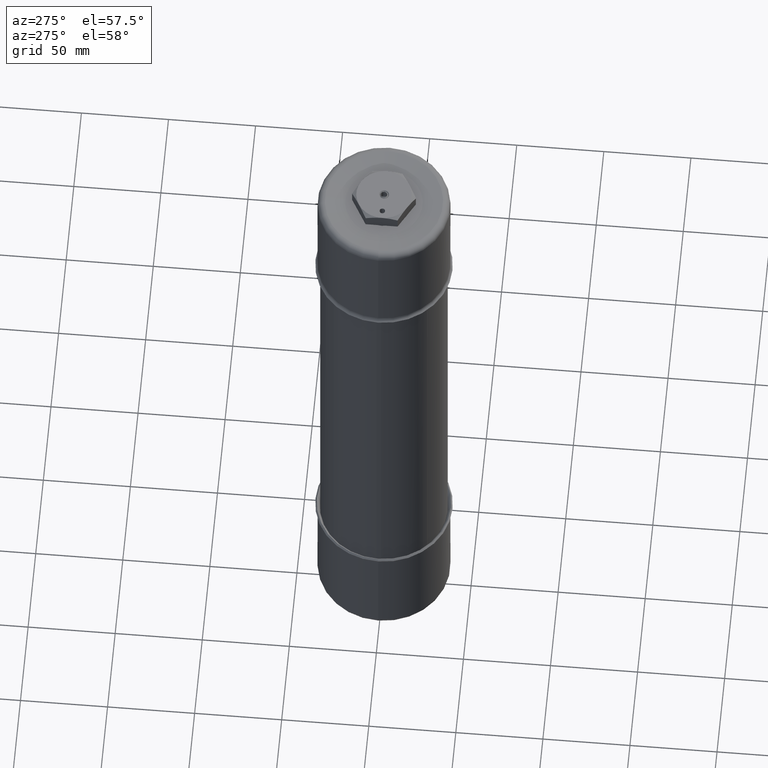
[diagram: clean part render]
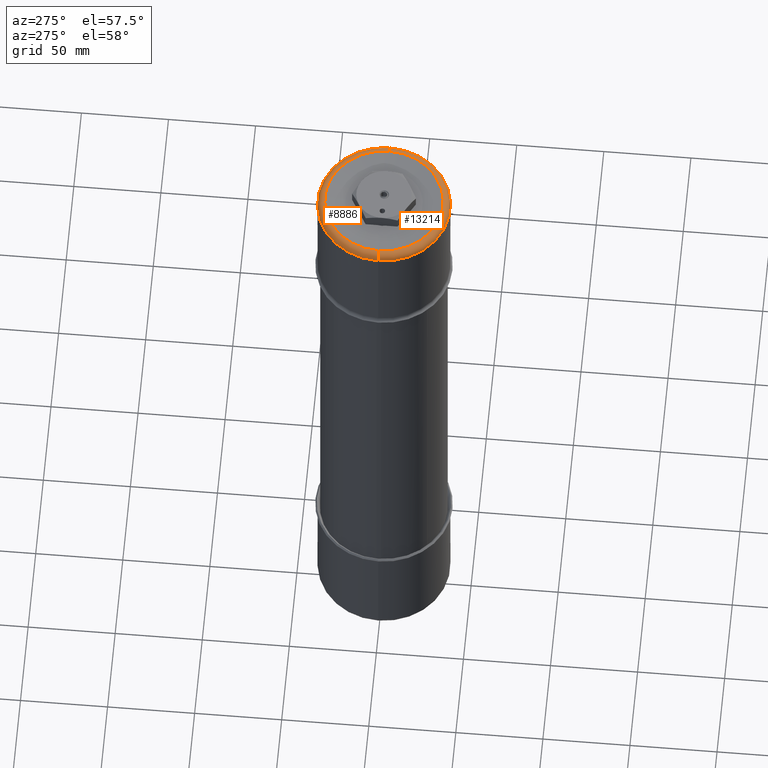
[diagram: same view with one multi-face feature highlighted, each face labeled with its STEP entity id]
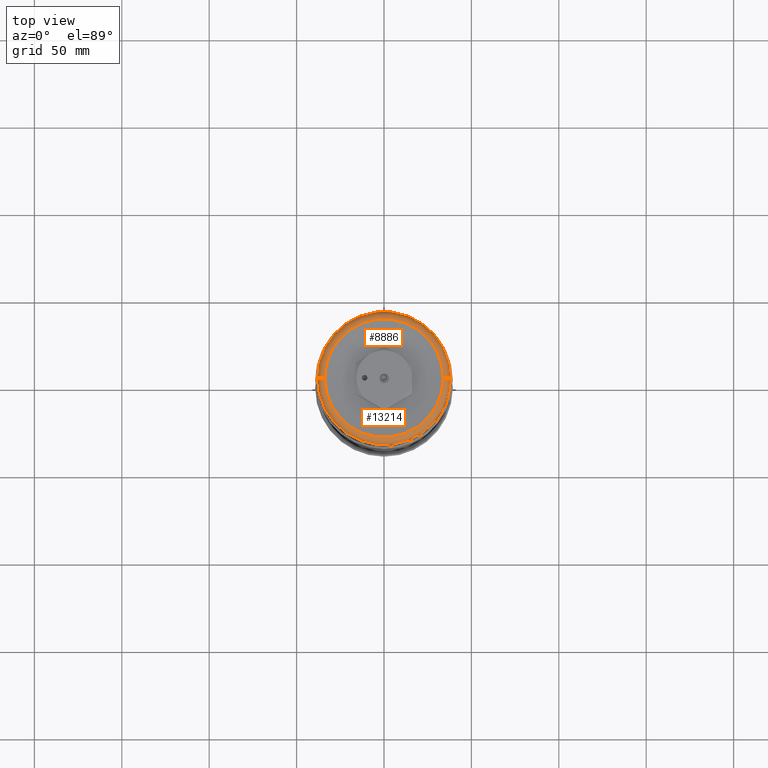
[diagram: same view with one multi-face feature highlighted, each face labeled with its STEP entity id]
A machine part, auxiliary view. The highlighted faces form ONE feature: a constant-radius fillet chain: 2 tangent blend faces with common blend radius 4.1656 mm. The faces share edges in the B-rep.
A second angle (top view) of the same feature is appended — it is thin or edge-on in the first view.
Their STEP definitions:
[1] entity #13214 (Torus):
#265 = TOROIDAL_SURFACE ( 'NONE', #10430, 1.334999999999999500, 0.1640000000000000100 ) ;
#697 = CIRCLE ( 'NONE', #10086, 0.1639999999999999500 ) ;
#939 = DIRECTION ( 'NONE',  ( -6.695352868346986400E-017, 1.000000000000000000, -1.617672680927955200E-030 ) ) ;
#1162 = AXIS2_PLACEMENT_3D ( 'NONE', #2802, #12917, #4239 ) ;
#1611 = VERTEX_POINT ( 'NONE', #10228 ) ;
#2294 = CARTESIAN_POINT ( 'NONE',  ( 2.663827230358403700E-014, -1.473482836812794400E-030, -0.06049999999999982500 ) ) ;
#2346 = AXIS2_PLACEMENT_3D ( 'NONE', #13320, #4664, #14798 ) ;
#2802 = CARTESIAN_POINT ( 'NONE',  ( -1.334999999999973500, 7.410738689373792400E-017, -0.06050000000000448100 ) ) ;
#2903 = ORIENTED_EDGE ( 'NONE', *, *, #10505, .F. ) ;
#3362 = VERTEX_POINT ( 'NONE', #10164 ) ;
#4239 = DIRECTION ( 'NONE',  ( 1.000000000000000000, -5.551115123126545700E-017, 0.0000000000000000000 ) ) ;
#4640 = VERTEX_POINT ( 'NONE', #11846 ) ;
#4664 = DIRECTION ( 'NONE',  ( 3.491483361109390700E-015, -1.383905549562059800E-030, -1.000000000000000000 ) ) ;
#5248 = DIRECTION ( 'NONE',  ( -1.000000000000000000, 5.551115123126544400E-017, -3.491483361109390700E-015 ) ) ;
#5834 = EDGE_LOOP ( 'NONE', ( #5980, #14625, #8791, #2903 ) ) ;
#5980 = ORIENTED_EDGE ( 'NONE', *, *, #6364, .F. ) ;
#6364 = EDGE_CURVE ( 'NONE', #4640, #16705, #697, .T. ) ;
#7321 = EDGE_CURVE ( 'NONE', #4640, #1611, #16258, .T. ) ;
#8576 = DIRECTION ( 'NONE',  ( 3.491483361109390700E-015, -1.383905549562059800E-030, -1.000000000000000000 ) ) ;
#8791 = ORIENTED_EDGE ( 'NONE', *, *, #10511, .T. ) ;
#9609 = CARTESIAN_POINT ( 'NONE',  ( 1.335000000000027100, 8.938296079243082800E-017, -0.06049999999999516200 ) ) ;
#10086 = AXIS2_PLACEMENT_3D ( 'NONE', #9609, #939, #11053 ) ;
#10164 = CARTESIAN_POINT ( 'NONE',  ( -1.498999999999973900, 8.321121569566546100E-017, -0.06050000000000564000 ) ) ;
#10228 = CARTESIAN_POINT ( 'NONE',  ( -1.334999999999974400, 7.410738689373815800E-017, 0.1034999999999955100 ) ) ;
#10430 = AXIS2_PLACEMENT_3D ( 'NONE', #2294, #13909, #5248 ) ;
#10505 = EDGE_CURVE ( 'NONE', #16705, #3362, #15849, .T. ) ;
#10511 = EDGE_CURVE ( 'NONE', #1611, #3362, #11984, .T. ) ;
#10823 = CARTESIAN_POINT ( 'NONE',  ( 1.499000000000027400, 1.003633394965199000E-016, -0.06049999999999516900 ) ) ;
#11053 = DIRECTION ( 'NONE',  ( -1.000000000000000000, -6.695352868346988900E-017, 0.0000000000000000000 ) ) ;
#11846 = CARTESIAN_POINT ( 'NONE',  ( 1.335000000000025500, 9.487315014447541400E-017, 0.1035000000000048400 ) ) ;
#11984 = CIRCLE ( 'NONE', #1162, 0.1639999999999999500 ) ;
#12917 = DIRECTION ( 'NONE',  ( -5.551115123126544400E-017, -1.000000000000000000, 1.190089288682069400E-030 ) ) ;
#13214 = ADVANCED_FACE ( 'NONE', ( #17011 ), #265, .T. ) ;
#13320 = CARTESIAN_POINT ( 'NONE',  ( 2.606897546951741200E-014, -1.246705870817581700E-030, 0.1035000000000001800 ) ) ;
#13909 = DIRECTION ( 'NONE',  ( 3.491483361109390700E-015, -1.383905549562059800E-030, -1.000000000000000000 ) ) ;
#14625 = ORIENTED_EDGE ( 'NONE', *, *, #7321, .T. ) ;
#14798 = DIRECTION ( 'NONE',  ( -1.000000000000000000, 5.551115123126544400E-017, -3.491547295273144500E-015 ) ) ;
#15849 = CIRCLE ( 'NONE', #18015, 1.499000000000000600 ) ;
#16258 = CIRCLE ( 'NONE', #2346, 1.335000000000000400 ) ;
#16705 = VERTEX_POINT ( 'NONE', #10823 ) ;
#17011 = FACE_OUTER_BOUND ( 'NONE', #5834, .T. ) ;
#17243 = CARTESIAN_POINT ( 'NONE',  ( 2.663827230358403400E-014, -1.473482836812795000E-030, -0.06050000000000040100 ) ) ;
#18015 = AXIS2_PLACEMENT_3D ( 'NONE', #17243, #8576, #18711 ) ;
#18711 = DIRECTION ( 'NONE',  ( -1.000000000000000000, 5.551115123126544400E-017, -3.491124958547766700E-015 ) ) ;
[2] entity #8886 (Torus):
#697 = CIRCLE ( 'NONE', #10086, 0.1639999999999999500 ) ;
#939 = DIRECTION ( 'NONE',  ( -6.695352868346986400E-017, 1.000000000000000000, -1.617672680927955200E-030 ) ) ;
#1149 = EDGE_CURVE ( 'NONE', #1611, #4640, #16589, .T. ) ;
#1162 = AXIS2_PLACEMENT_3D ( 'NONE', #2802, #12917, #4239 ) ;
#1611 = VERTEX_POINT ( 'NONE', #10228 ) ;
#2802 = CARTESIAN_POINT ( 'NONE',  ( -1.334999999999973500, 7.410738689373792400E-017, -0.06050000000000448100 ) ) ;
#2949 = CIRCLE ( 'NONE', #14360, 1.499000000000000600 ) ;
#3362 = VERTEX_POINT ( 'NONE', #10164 ) ;
#3512 = CARTESIAN_POINT ( 'NONE',  ( 2.663827230358403400E-014, -1.473482836812795000E-030, -0.06050000000000040100 ) ) ;
#3906 = EDGE_CURVE ( 'NONE', #3362, #16705, #2949, .T. ) ;
#4239 = DIRECTION ( 'NONE',  ( 1.000000000000000000, -5.551115123126545700E-017, 0.0000000000000000000 ) ) ;
#4517 = ORIENTED_EDGE ( 'NONE', *, *, #1149, .T. ) ;
#4640 = VERTEX_POINT ( 'NONE', #11846 ) ;
#4907 = CARTESIAN_POINT ( 'NONE',  ( 2.606897546951741200E-014, -1.246705870817581700E-030, 0.1035000000000001800 ) ) ;
#4966 = DIRECTION ( 'NONE',  ( -1.000000000000000000, 5.551115123126544400E-017, -3.491124958547766700E-015 ) ) ;
#5434 = AXIS2_PLACEMENT_3D ( 'NONE', #4907, #15030, #6377 ) ;
#6364 = EDGE_CURVE ( 'NONE', #4640, #16705, #697, .T. ) ;
#6377 = DIRECTION ( 'NONE',  ( -1.000000000000000000, 5.551115123126544400E-017, -3.491547295273144500E-015 ) ) ;
#6718 = DIRECTION ( 'NONE',  ( -1.000000000000000000, 5.551115123126544400E-017, -3.491483361109390700E-015 ) ) ;
#7559 = TOROIDAL_SURFACE ( 'NONE', #18727, 1.334999999999999500, 0.1640000000000000100 ) ;
#8696 = ORIENTED_EDGE ( 'NONE', *, *, #6364, .T. ) ;
#8886 = ADVANCED_FACE ( 'NONE', ( #16619 ), #7559, .T. ) ;
#9609 = CARTESIAN_POINT ( 'NONE',  ( 1.335000000000027100, 8.938296079243082800E-017, -0.06049999999999516200 ) ) ;
#10086 = AXIS2_PLACEMENT_3D ( 'NONE', #9609, #939, #11053 ) ;
#10164 = CARTESIAN_POINT ( 'NONE',  ( -1.498999999999973900, 8.321121569566546100E-017, -0.06050000000000564000 ) ) ;
#10228 = CARTESIAN_POINT ( 'NONE',  ( -1.334999999999974400, 7.410738689373815800E-017, 0.1034999999999955100 ) ) ;
#10511 = EDGE_CURVE ( 'NONE', #1611, #3362, #11984, .T. ) ;
#10823 = CARTESIAN_POINT ( 'NONE',  ( 1.499000000000027400, 1.003633394965199000E-016, -0.06049999999999516900 ) ) ;
#11053 = DIRECTION ( 'NONE',  ( -1.000000000000000000, -6.695352868346988900E-017, 0.0000000000000000000 ) ) ;
#11846 = CARTESIAN_POINT ( 'NONE',  ( 1.335000000000025500, 9.487315014447541400E-017, 0.1035000000000048400 ) ) ;
#11984 = CIRCLE ( 'NONE', #1162, 0.1639999999999999500 ) ;
#12917 = DIRECTION ( 'NONE',  ( -5.551115123126544400E-017, -1.000000000000000000, 1.190089288682069400E-030 ) ) ;
#13632 = DIRECTION ( 'NONE',  ( 3.491483361109390700E-015, -1.383905549562059800E-030, -1.000000000000000000 ) ) ;
#13729 = ORIENTED_EDGE ( 'NONE', *, *, #3906, .F. ) ;
#14360 = AXIS2_PLACEMENT_3D ( 'NONE', #3512, #13632, #4966 ) ;
#14530 = EDGE_LOOP ( 'NONE', ( #4517, #8696, #13729, #17410 ) ) ;
#15030 = DIRECTION ( 'NONE',  ( 3.491483361109390700E-015, -1.383905549562059800E-030, -1.000000000000000000 ) ) ;
#15320 = CARTESIAN_POINT ( 'NONE',  ( 2.663827230358403700E-014, -1.473482836812794400E-030, -0.06049999999999982500 ) ) ;
#15386 = DIRECTION ( 'NONE',  ( 3.491483361109390700E-015, -1.383905549562059800E-030, -1.000000000000000000 ) ) ;
#16589 = CIRCLE ( 'NONE', #5434, 1.335000000000000400 ) ;
#16619 = FACE_OUTER_BOUND ( 'NONE', #14530, .T. ) ;
#16705 = VERTEX_POINT ( 'NONE', #10823 ) ;
#17410 = ORIENTED_EDGE ( 'NONE', *, *, #10511, .F. ) ;
#18727 = AXIS2_PLACEMENT_3D ( 'NONE', #15320, #15386, #6718 ) ;